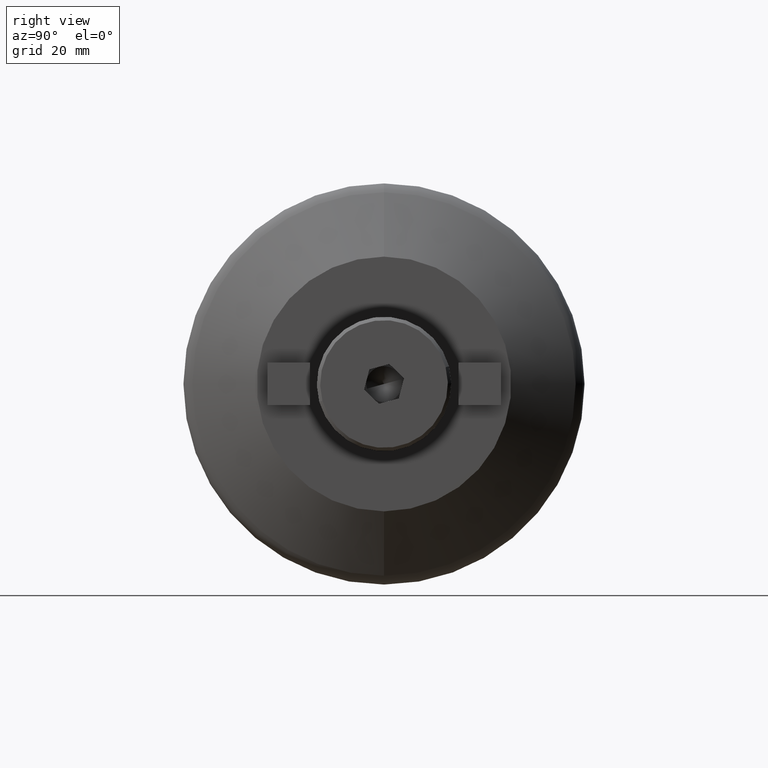
[diagram: clean part render]
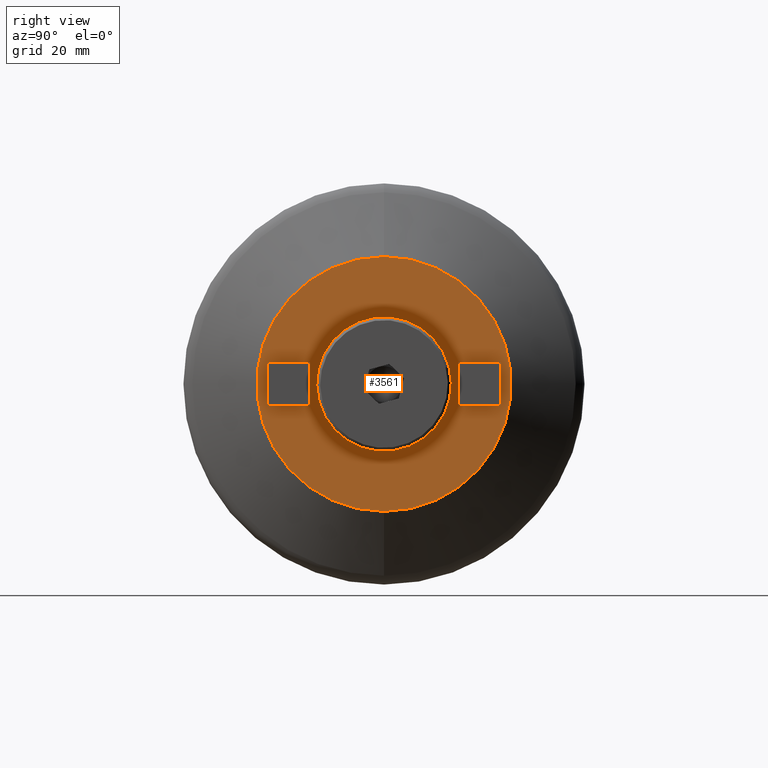
[diagram: same view with one face highlighted and labeled with its STEP entity id]
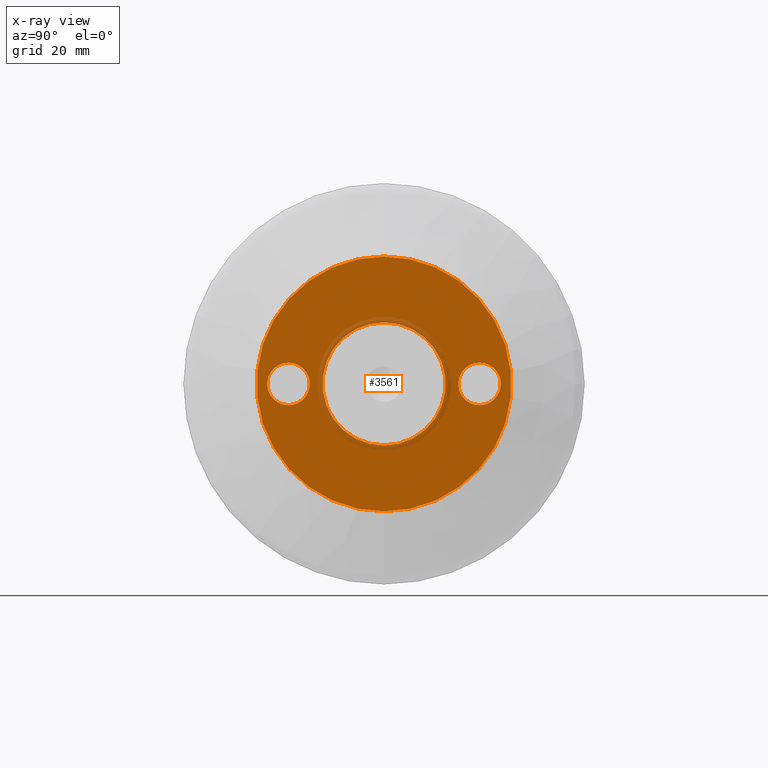
[diagram: x-ray of the same camera — body ghosted, the highlighted face saturated]
A machine part, right view. The second image highlights one B-rep face of the part: STEP entity #3561.
The next image is the same camera in x-ray: the body ghosted, the highlighted face saturated — about 6% of this face is hidden behind the body in this view.
In plain terms, the highlighted planar face has unit normal (-1, 0, 0).
Its self-contained STEP definition (entity closure, byte-faithful):
#26 = CIRCLE ( 'NONE', #5825, 4.762499999999999300 ) ;
#637 = ORIENTED_EDGE ( 'NONE', *, *, #2960, .F. ) ;
#638 = ORIENTED_EDGE ( 'NONE', *, *, #2970, .F. ) ;
#639 = ORIENTED_EDGE ( 'NONE', *, *, #3014, .F. ) ;
#640 = ORIENTED_EDGE ( 'NONE', *, *, #2563, .F. ) ;
#648 = ORIENTED_EDGE ( 'NONE', *, *, #2680, .F. ) ;
#649 = ORIENTED_EDGE ( 'NONE', *, *, #2944, .F. ) ;
#650 = ORIENTED_EDGE ( 'NONE', *, *, #2998, .T. ) ;
#654 = ORIENTED_EDGE ( 'NONE', *, *, #2446, .T. ) ;
#1169 = CARTESIAN_POINT ( 'NONE',  ( 74.99999999999998600, -21.43000000000000000, -5.735020960407054300E-015 ) ) ;
#1239 = DIRECTION ( 'NONE',  ( 0.0000000000000000000, 0.0000000000000000000, -1.000000000000000000 ) ) ;
#1240 = DIRECTION ( 'NONE',  ( 1.000000000000000000, -0.0000000000000000000, -0.0000000000000000000 ) ) ;
#1327 = DIRECTION ( 'NONE',  ( 0.0000000000000000000, 0.0000000000000000000, -1.000000000000000000 ) ) ;
#1329 = DIRECTION ( 'NONE',  ( 1.000000000000000000, -0.0000000000000000000, -0.0000000000000000000 ) ) ;
#1337 = CARTESIAN_POINT ( 'NONE',  ( 74.99999999999998600, -21.43000000000000000, -5.735020960407054300E-015 ) ) ;
#1367 = DIRECTION ( 'NONE',  ( 0.0000000000000000000, 0.0000000000000000000, 1.000000000000000000 ) ) ;
#1370 = DIRECTION ( 'NONE',  ( -1.000000000000000000, -0.0000000000000000000, -0.0000000000000000000 ) ) ;
#1378 = CARTESIAN_POINT ( 'NONE',  ( 74.99999999999998600, 0.0000000000000000000, 0.0000000000000000000 ) ) ;
#2108 = AXIS2_PLACEMENT_3D ( 'NONE', #7122, #7092, #7086 ) ;
#2446 = EDGE_CURVE ( 'NONE', #7646, #7849, #5207, .T. ) ;
#2563 = EDGE_CURVE ( 'NONE', #7741, #7870, #2651, .T. ) ;
#2651 = CIRCLE ( 'NONE', #5792, 4.762499999999999300 ) ;
#2680 = EDGE_CURVE ( 'NONE', #7870, #7741, #26, .T. ) ;
#2944 = EDGE_CURVE ( 'NONE', #7462, #7737, #6544, .T. ) ;
#2960 = EDGE_CURVE ( 'NONE', #7737, #7462, #6564, .T. ) ;
#2970 = EDGE_CURVE ( 'NONE', #7897, #7693, #6577, .T. ) ;
#2998 = EDGE_CURVE ( 'NONE', #7849, #7646, #3798, .T. ) ;
#3014 = EDGE_CURVE ( 'NONE', #7693, #7897, #3821, .T. ) ;
#3106 = CARTESIAN_POINT ( 'NONE',  ( 74.99999999999998600, 0.0000000000000000000, 0.0000000000000000000 ) ) ;
#3138 = DIRECTION ( 'NONE',  ( 0.0000000000000000000, 0.0000000000000000000, 1.000000000000000000 ) ) ;
#3141 = DIRECTION ( 'NONE',  ( -1.000000000000000000, -0.0000000000000000000, -0.0000000000000000000 ) ) ;
#3143 = CARTESIAN_POINT ( 'NONE',  ( 74.99999999999998600, 0.0000000000000000000, 0.0000000000000000000 ) ) ;
#3354 = DIRECTION ( 'NONE',  ( 0.0000000000000000000, 0.0000000000000000000, 1.000000000000000000 ) ) ;
#3372 = DIRECTION ( 'NONE',  ( -1.000000000000000000, -0.0000000000000000000, -0.0000000000000000000 ) ) ;
#3561 = ADVANCED_FACE ( 'NONE', ( #8201, #8209, #8211, #8213 ), #7198, .F. ) ;
#3798 = CIRCLE ( 'NONE', #5988, 13.80973641030747200 ) ;
#3821 = CIRCLE ( 'NONE', #5996, 4.762499999999999300 ) ;
#4053 = CARTESIAN_POINT ( 'NONE',  ( 74.99999999999998600, 21.43000000000000000, 4.762500000000007300 ) ) ;
#4057 = CARTESIAN_POINT ( 'NONE',  ( 74.99999999999998600, 0.0000000000000000000, 28.57499999999999900 ) ) ;
#4095 = CARTESIAN_POINT ( 'NONE',  ( 74.99999999999998600, -21.43000000000000000, -4.762500000000005500 ) ) ;
#4139 = CARTESIAN_POINT ( 'NONE',  ( 74.99999999999998600, 0.0000000000000000000, -13.80973641030747200 ) ) ;
#4380 = CARTESIAN_POINT ( 'NONE',  ( 74.99999999999998600, -21.43000000000000000, 4.762499999999993100 ) ) ;
#4389 = CARTESIAN_POINT ( 'NONE',  ( 74.99999999999998600, 21.43000000000000000, -4.762499999999991300 ) ) ;
#4456 = CARTESIAN_POINT ( 'NONE',  ( 74.99999999999998600, 1.691204949195170600E-015, 13.80973641030747200 ) ) ;
#4804 = CARTESIAN_POINT ( 'NONE',  ( 74.99999999999998600, 21.43000000000000000, 7.387069492456835900E-015 ) ) ;
#4895 = DIRECTION ( 'NONE',  ( 0.0000000000000000000, 0.0000000000000000000, -1.000000000000000000 ) ) ;
#4896 = DIRECTION ( 'NONE',  ( 1.000000000000000000, -0.0000000000000000000, -0.0000000000000000000 ) ) ;
#4955 = CARTESIAN_POINT ( 'NONE',  ( 74.99999999999998600, 4.382704732448590300E-015, -28.57499999999999900 ) ) ;
#5207 = CIRCLE ( 'NONE', #5719, 13.80973641030747200 ) ;
#5589 = CARTESIAN_POINT ( 'NONE',  ( 74.99999999999998600, 21.43000000000000000, 7.387069492456835900E-015 ) ) ;
#5590 = DIRECTION ( 'NONE',  ( 1.000000000000000000, -0.0000000000000000000, -0.0000000000000000000 ) ) ;
#5591 = DIRECTION ( 'NONE',  ( 0.0000000000000000000, 0.0000000000000000000, -1.000000000000000000 ) ) ;
#5719 = AXIS2_PLACEMENT_3D ( 'NONE', #7534, #7516, #7484 ) ;
#5792 = AXIS2_PLACEMENT_3D ( 'NONE', #5589, #5590, #5591 ) ;
#5825 = AXIS2_PLACEMENT_3D ( 'NONE', #4804, #4896, #4895 ) ;
#5957 = AXIS2_PLACEMENT_3D ( 'NONE', #3143, #3141, #3138 ) ;
#5968 = AXIS2_PLACEMENT_3D ( 'NONE', #3106, #3372, #3354 ) ;
#5974 = AXIS2_PLACEMENT_3D ( 'NONE', #1169, #1240, #1239 ) ;
#5988 = AXIS2_PLACEMENT_3D ( 'NONE', #1378, #1370, #1367 ) ;
#5996 = AXIS2_PLACEMENT_3D ( 'NONE', #1337, #1329, #1327 ) ;
#6544 = CIRCLE ( 'NONE', #5957, 28.57499999999999900 ) ;
#6564 = CIRCLE ( 'NONE', #5968, 28.57499999999999900 ) ;
#6577 = CIRCLE ( 'NONE', #5974, 4.762499999999999300 ) ;
#7086 = DIRECTION ( 'NONE',  ( -0.0000000000000000000, 0.0000000000000000000, 1.000000000000000000 ) ) ;
#7092 = DIRECTION ( 'NONE',  ( -1.000000000000000000, 0.0000000000000000000, -0.0000000000000000000 ) ) ;
#7122 = CARTESIAN_POINT ( 'NONE',  ( 74.99999999999998600, 28.57499999999999900, 0.0000000000000000000 ) ) ;
#7198 = PLANE ( 'NONE',  #2108 ) ;
#7462 = VERTEX_POINT ( 'NONE', #4955 ) ;
#7484 = DIRECTION ( 'NONE',  ( 0.0000000000000000000, 0.0000000000000000000, 1.000000000000000000 ) ) ;
#7516 = DIRECTION ( 'NONE',  ( -1.000000000000000000, -0.0000000000000000000, -0.0000000000000000000 ) ) ;
#7534 = CARTESIAN_POINT ( 'NONE',  ( 74.99999999999998600, 0.0000000000000000000, 0.0000000000000000000 ) ) ;
#7646 = VERTEX_POINT ( 'NONE', #4139 ) ;
#7693 = VERTEX_POINT ( 'NONE', #4095 ) ;
#7737 = VERTEX_POINT ( 'NONE', #4057 ) ;
#7741 = VERTEX_POINT ( 'NONE', #4053 ) ;
#7849 = VERTEX_POINT ( 'NONE', #4456 ) ;
#7870 = VERTEX_POINT ( 'NONE', #4389 ) ;
#7897 = VERTEX_POINT ( 'NONE', #4380 ) ;
#8201 = FACE_BOUND ( 'NONE', #8416, .T. ) ;
#8209 = FACE_BOUND ( 'NONE', #8339, .T. ) ;
#8211 = FACE_OUTER_BOUND ( 'NONE', #8411, .T. ) ;
#8213 = FACE_BOUND ( 'NONE', #8410, .T. ) ;
#8339 = EDGE_LOOP ( 'NONE', ( #639, #638 ) ) ;
#8410 = EDGE_LOOP ( 'NONE', ( #654, #650 ) ) ;
#8411 = EDGE_LOOP ( 'NONE', ( #637, #649 ) ) ;
#8416 = EDGE_LOOP ( 'NONE', ( #648, #640 ) ) ;